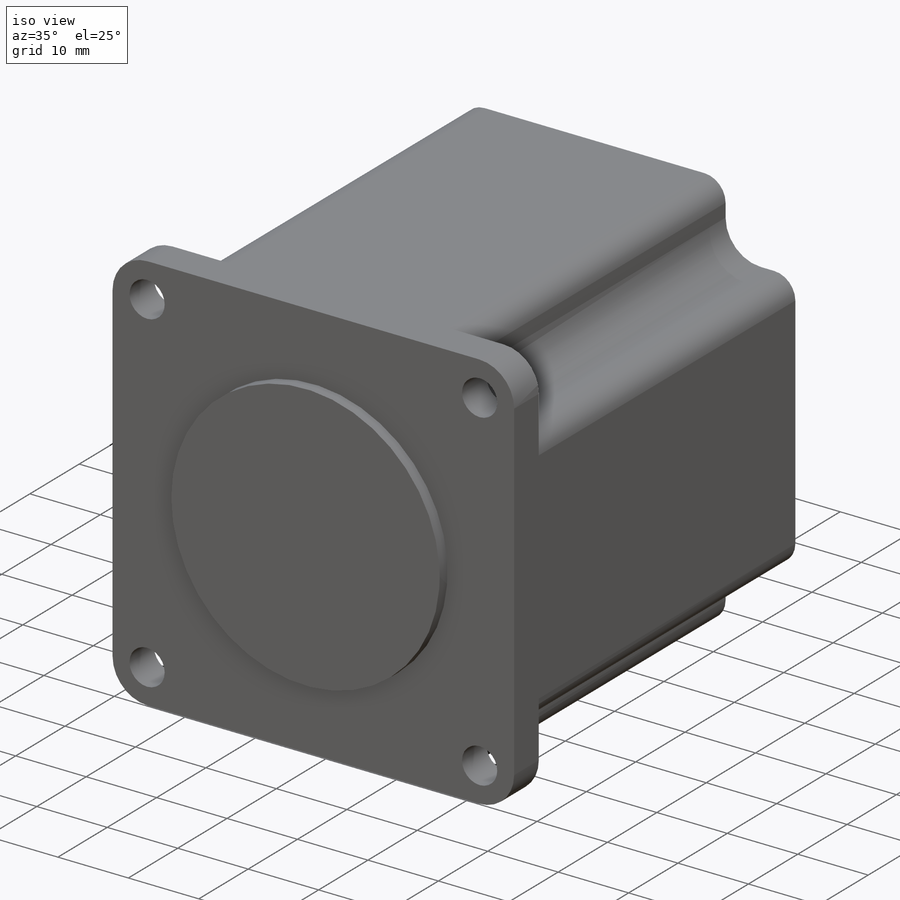
[diagram: iso view]
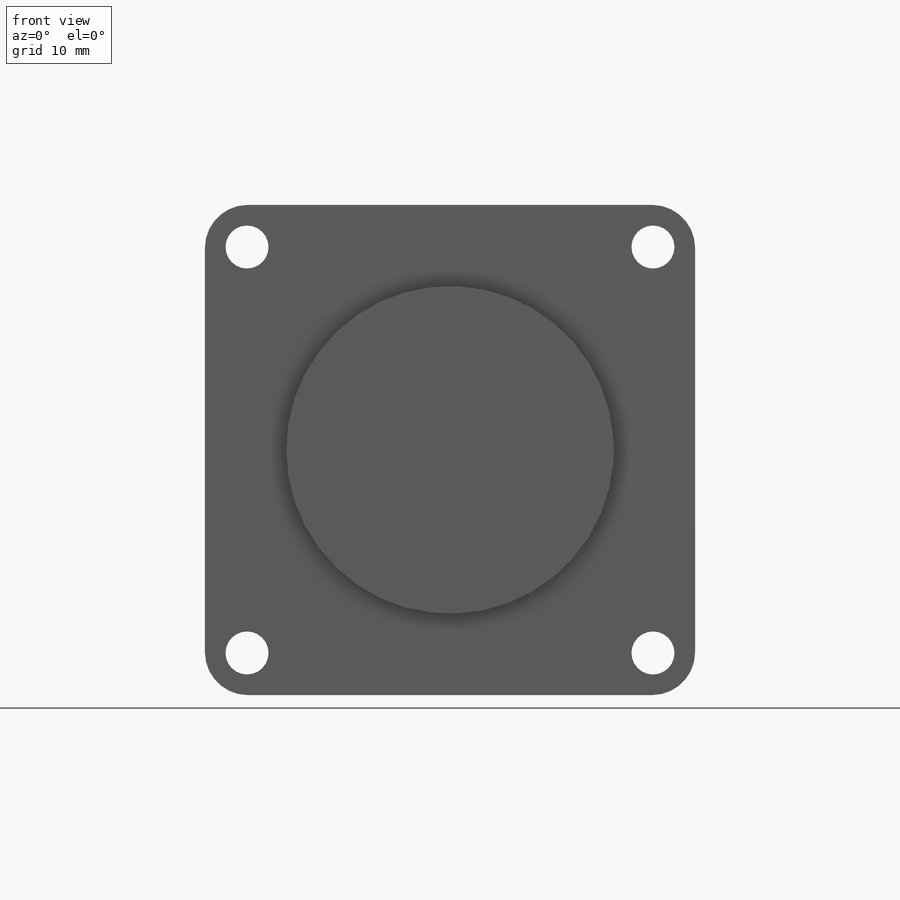
[diagram: front view]
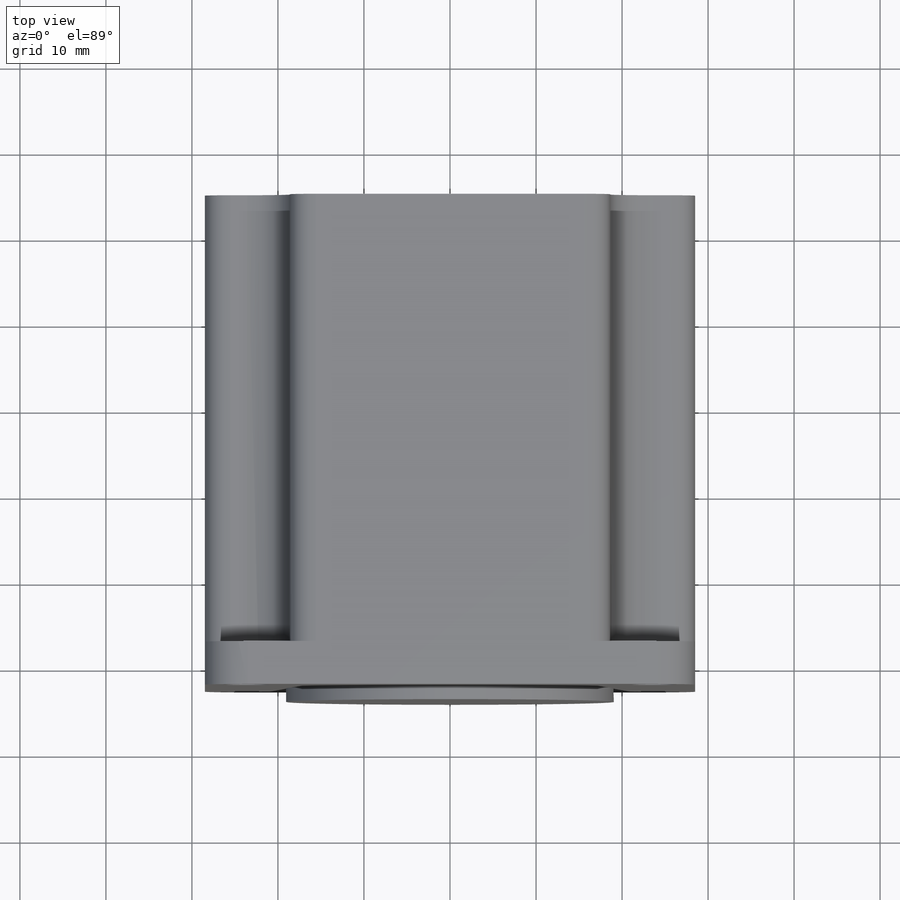
[diagram: top view]
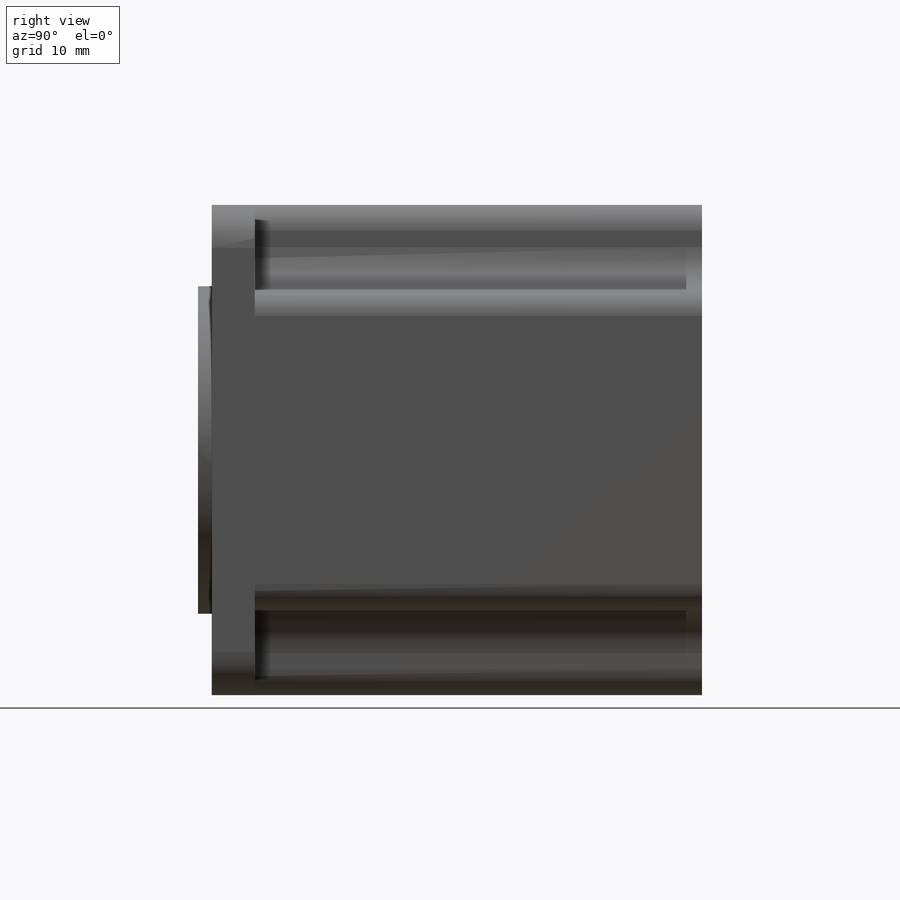
[diagram: right view]
SOLIDWORKS PART (.sldprt)
format: sldprt  version: not decoded by parser v0  size: 951,808 bytes
history: native  units: mm
features: sketch x6, extrude x5, material x1, cut_extrude x1 (+12 scaffold rows collapsed)
feature tree (25):
  scaffold x12  (default folders/planes/origin — collapsed)
  material  "Material <not specified>"
  sketch  "Sketch1"  dims[c1.D3=5.0mm c1.D6=5.0mm c1.D7=5.0mm c1.D8=5.0mm c1.D9=5.0mm c1.D1=57.0mm c1.D2=57.0mm c1.D4=47.14mm c1.D5=47.14mm c2.D6=0.07mm]
  extrude  "Boss-Extrude1"  Depth=5mm
  sketch  "Sketch5"  dims[D3=5.0mm D4=5.0mm D5=5.0mm D6=5.0mm D1=47.2mm D2=47.2mm]
  cut_extrude  "Cut-Extrude1"  [1 undecoded]
  sketch  "Sketch3"  dims[D1=38.1mm]
  extrude  "Boss-Extrude3"  Depth=1.6mm
  sketch  "Sketch4"  dims[D1=10.0mm D2=10.0mm D3=10.0mm D4=10.0mm D5=3.0mm]
  extrude  "Body"  Depth=52mm
  sketch  "Sketch6"  dims[D1=6.35mm]
  extrude  "Rear Shaft"  Depth=15mm
  sketch  "Sketch7"  dims[D1=6.35mm]
  extrude  "Front Shaft"  Depth=15mm
decode coverage: 11 of 12 modeling features carry decoded parameters
note: 1 parameter value undecoded
note: suppression state not decoded; provenance and decode notes live in map.json
